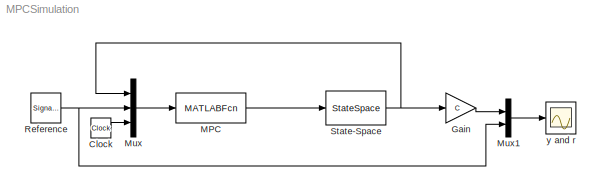
MODEL MPCSimulation
KIND model
BLOCK [Clock] Clock
  Decimation = 100
  SID = 29
BLOCK [Gain] Gain
  Gain = C
  Multiplication = Matrix(K*u)
  OutDataTypeStr = Inherit: Inherit via internal rule
  ParamDataTypeStr = Inherit: Inherit via internal rule
  SID = 30
  SaturateOnIntegerOverflow = off
BLOCK [MATLABFcn] MPC
  MATLABFcn = MPCController(u(1:3),u(4),u(5))
  Ports = [1, 1]
  SID = 32
BLOCK [Mux] Mux
  DisplayOption = bar
  Inputs = 3
  Ports = [3, 1]
  SID = 27
BLOCK [Mux] Mux1
  DisplayOption = bar
  Inputs = 2
  Ports = [2, 1]
  SID = 33
BLOCK [SignalGenerator] Reference
  Frequency = 0.05
  Ports = [0, 1]
  SID = 28
  WaveForm = square
BLOCK [StateSpace] State-Space
  A = A
  B = B
  C = eye(3)
  D = zeros(3,1)
  InitialCondition = [0,0,0]
  Ports = [1, 1]
  SID = 34
BLOCK [Scope] y and r
  Floating = off
  NumInputPorts = 1
  Ports = [1]
  SID = 35
  ScopeSpecificationString = Simulink.scopes.TimeScopeBlockCfg('CurrentConfiguration', extmgr.ConfigurationSet(extmgr.Configuration('Core','General UI',true),extmgr.Configuration('Core','Source UI',true),extmgr.Configuration('Sources','WiredSimulink',true,'DataLoggingVariableName','ScopeData1','DataLoggingSaveFormat','StructureWithTime','DataLoggingLimitDataPoints',true,'DataLoggingDecimation','1','DataLoggingDecimateData',tr...<+1741ch>
LINE Clock:1 -> Mux:3
LINE Gain:1 -> Mux1:1
LINE MPC:1 -> State-Space:1
LINE Mux1:1 -> y and r:1
LINE Mux:1 -> MPC:1
NET Reference:1 -> Mux1:2, Mux:2
NET State-Space:1 -> Gain:1, Mux:1
note: NET lines group one-source signal fan-out (src -> all destinations, sorted); 1:1 wires keep LINE
